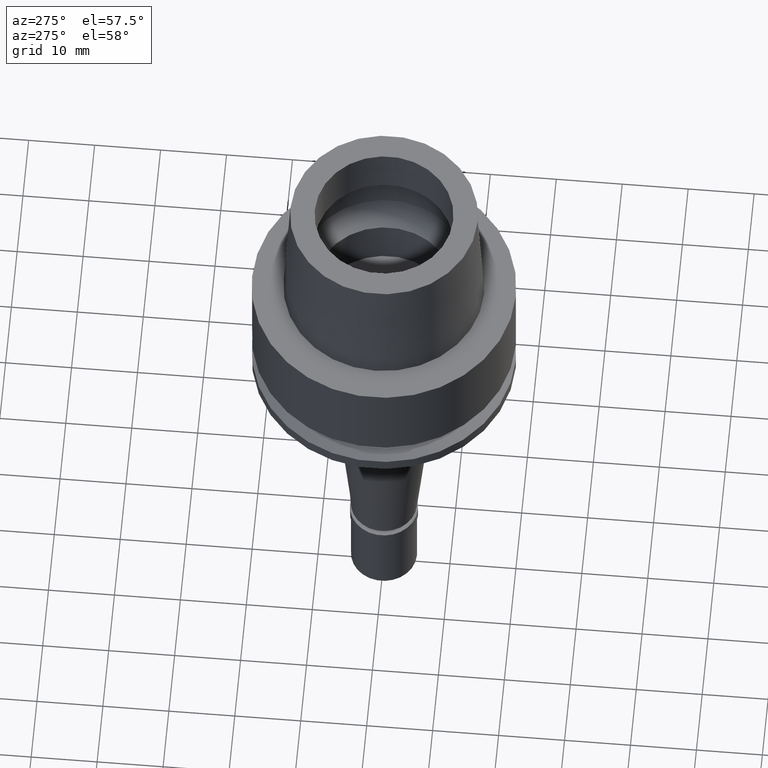
[diagram: clean part render]
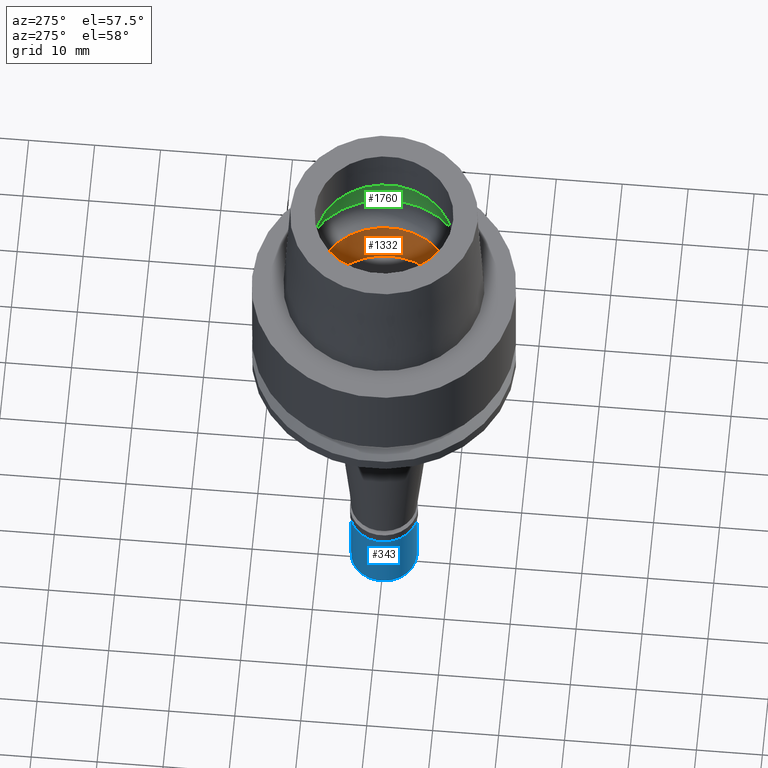
[diagram: same view with three faces highlighted in distinct colors, each labeled with its STEP entity id]
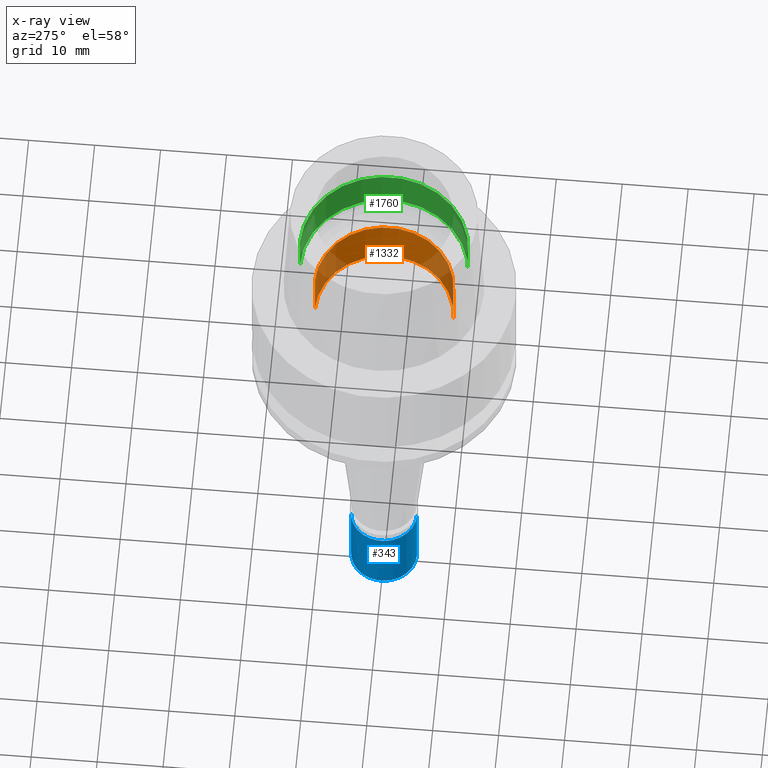
[diagram: x-ray of the same camera — body ghosted, the three highlighted faces saturated]
A machine part, auxiliary view with three faces highlighted in distinct colors.
The next image is the same camera in x-ray (body ghosted, the three faces saturated) — at least one of them is partly hidden behind the body in this view.
Their STEP definitions:

[orange] entity #1332 — the highlighted cylindrical surface (partial cylindrical patch) has radius 10.5 mm, axis along (0, 0, 1).
#28 = VERTEX_POINT ( 'NONE', #1275 ) ;
#70 = CARTESIAN_POINT ( 'NONE',  ( 0.0000000000000000000, 10.50000000000000000, -1.705302565823999875E-13 ) ) ;
#82 = DIRECTION ( 'NONE',  ( 0.0000000000000000000, 0.0000000000000000000, 1.000000000000000000 ) ) ;
#118 = DIRECTION ( 'NONE',  ( 0.0000000000000000000, -1.000000000000000000, 0.0000000000000000000 ) ) ;
#123 = ORIENTED_EDGE ( 'NONE', *, *, #1184, .T. ) ;
#125 = DIRECTION ( 'NONE',  ( 0.0000000000000000000, 0.0000000000000000000, -1.000000000000000000 ) ) ;
#233 = FACE_OUTER_BOUND ( 'NONE', #2328, .T. ) ;
#275 = DIRECTION ( 'NONE',  ( 0.0000000000000000000, 1.000000000000000000, 0.0000000000000000000 ) ) ;
#517 = ORIENTED_EDGE ( 'NONE', *, *, #2458, .T. ) ;
#526 = DIRECTION ( 'NONE',  ( 0.0000000000000000000, 0.0000000000000000000, 1.000000000000000000 ) ) ;
#529 = CIRCLE ( 'NONE', #2177, 10.50000000000000000 ) ;
#542 = CARTESIAN_POINT ( 'NONE',  ( 0.0000000000000000000, -10.50000000000000000, -7.950000000000000178 ) ) ;
#573 = CARTESIAN_POINT ( 'NONE',  ( 0.0000000000000000000, 0.0000000000000000000, -7.950000000000000178 ) ) ;
#794 = AXIS2_PLACEMENT_3D ( 'NONE', #2151, #1990, #118 ) ;
#819 = VERTEX_POINT ( 'NONE', #1790 ) ;
#841 = CIRCLE ( 'NONE', #794, 10.50000000000000000 ) ;
#904 = CARTESIAN_POINT ( 'NONE',  ( 0.0000000000000000000, 0.0000000000000000000, -75.86499999999999488 ) ) ;
#974 = DIRECTION ( 'NONE',  ( 0.0000000000000000000, 1.000000000000000000, 0.0000000000000000000 ) ) ;
#1055 = AXIS2_PLACEMENT_3D ( 'NONE', #904, #1063, #275 ) ;
#1063 = DIRECTION ( 'NONE',  ( 0.0000000000000000000, 0.0000000000000000000, 1.000000000000000000 ) ) ;
#1151 = EDGE_CURVE ( 'NONE', #28, #1697, #2628, .T. ) ;
#1167 = EDGE_CURVE ( 'NONE', #28, #819, #529, .T. ) ;
#1184 = EDGE_CURVE ( 'NONE', #819, #2326, #2613, .T. ) ;
#1275 = CARTESIAN_POINT ( 'NONE',  ( 0.0000000000000000000, 10.50000000000000000, -7.950000000000000178 ) ) ;
#1332 = ADVANCED_FACE ( 'NONE', ( #233 ), #1925, .F. ) ;
#1508 = VECTOR ( 'NONE', #526, 1000.000000000000000 ) ;
#1509 = ORIENTED_EDGE ( 'NONE', *, *, #1167, .T. ) ;
#1621 = ORIENTED_EDGE ( 'NONE', *, *, #1151, .F. ) ;
#1697 = VERTEX_POINT ( 'NONE', #70 ) ;
#1701 = VECTOR ( 'NONE', #82, 1000.000000000000000 ) ;
#1790 = CARTESIAN_POINT ( 'NONE',  ( 0.0000000000000000000, -10.50000000000000000, -7.950000000000000178 ) ) ;
#1925 = CYLINDRICAL_SURFACE ( 'NONE', #1055, 10.50000000000000000 ) ;
#1990 = DIRECTION ( 'NONE',  ( 0.0000000000000000000, 0.0000000000000000000, 1.000000000000000000 ) ) ;
#2047 = CARTESIAN_POINT ( 'NONE',  ( 0.0000000000000000000, -10.50000000000000000, -1.705302565823999875E-13 ) ) ;
#2151 = CARTESIAN_POINT ( 'NONE',  ( 0.0000000000000000000, 0.0000000000000000000, -1.847411112975999717E-13 ) ) ;
#2177 = AXIS2_PLACEMENT_3D ( 'NONE', #573, #125, #974 ) ;
#2326 = VERTEX_POINT ( 'NONE', #2047 ) ;
#2328 = EDGE_LOOP ( 'NONE', ( #1509, #123, #517, #1621 ) ) ;
#2436 = CARTESIAN_POINT ( 'NONE',  ( 0.0000000000000000000, 10.50000000000000000, -7.950000000000000178 ) ) ;
#2458 = EDGE_CURVE ( 'NONE', #2326, #1697, #841, .T. ) ;
#2613 = LINE ( 'NONE', #542, #1701 ) ;
#2628 = LINE ( 'NONE', #2436, #1508 ) ;

[blue] entity #343 — the highlighted cylindrical surface (edge-blend (fillet) strip) has radius 5 mm, axis along (0, 0, 1).
#176 = CARTESIAN_POINT ( 'NONE',  ( 0.0000000000000000000, 0.0000000000000000000, -1.800000000000000044 ) ) ;
#241 = ORIENTED_EDGE ( 'NONE', *, *, #1801, .T. ) ;
#249 = VERTEX_POINT ( 'NONE', #1926 ) ;
#296 = EDGE_LOOP ( 'NONE', ( #241, #2685, #1304, #1122 ) ) ;
#343 = ADVANCED_FACE ( 'NONE', ( #2386 ), #2343, .T. ) ;
#447 = DIRECTION ( 'NONE',  ( 0.0000000000000000000, 0.0000000000000000000, -1.000000000000000000 ) ) ;
#479 = VERTEX_POINT ( 'NONE', #1981 ) ;
#520 = DIRECTION ( 'NONE',  ( 0.0000000000000000000, 0.0000000000000000000, 1.000000000000000000 ) ) ;
#585 = DIRECTION ( 'NONE',  ( 0.0000000000000000000, 0.0000000000000000000, -1.000000000000000000 ) ) ;
#619 = VECTOR ( 'NONE', #447, 1000.000000000000000 ) ;
#729 = EDGE_CURVE ( 'NONE', #2382, #249, #2066, .T. ) ;
#856 = DIRECTION ( 'NONE',  ( 0.0000000000000000000, 0.0000000000000000000, -1.000000000000000000 ) ) ;
#869 = CARTESIAN_POINT ( 'NONE',  ( 0.0000000000000000000, -5.000000000000000000, -1.800000000000000044 ) ) ;
#883 = CARTESIAN_POINT ( 'NONE',  ( 0.0000000000000000000, 5.000000000000000000, -1.800000000000000044 ) ) ;
#896 = DIRECTION ( 'NONE',  ( 0.0000000000000000000, 1.000000000000000000, 0.0000000000000000000 ) ) ;
#905 = DIRECTION ( 'NONE',  ( 0.0000000000000000000, 1.000000000000000000, 0.0000000000000000000 ) ) ;
#1122 = ORIENTED_EDGE ( 'NONE', *, *, #2424, .T. ) ;
#1137 = CIRCLE ( 'NONE', #1195, 5.000000000000000000 ) ;
#1195 = AXIS2_PLACEMENT_3D ( 'NONE', #1309, #2529, #896 ) ;
#1292 = LINE ( 'NONE', #883, #1698 ) ;
#1304 = ORIENTED_EDGE ( 'NONE', *, *, #729, .T. ) ;
#1309 = CARTESIAN_POINT ( 'NONE',  ( 0.0000000000000000000, 0.0000000000000000000, -13.00000000000000000 ) ) ;
#1334 = CARTESIAN_POINT ( 'NONE',  ( 0.0000000000000000000, 0.0000000000000000000, -13.65000000000000036 ) ) ;
#1473 = LINE ( 'NONE', #869, #619 ) ;
#1698 = VECTOR ( 'NONE', #856, 1000.000000000000000 ) ;
#1801 = EDGE_CURVE ( 'NONE', #479, #1900, #1137, .T. ) ;
#1900 = VERTEX_POINT ( 'NONE', #2169 ) ;
#1926 = CARTESIAN_POINT ( 'NONE',  ( 0.0000000000000000000, 5.000000000000000000, -1.800000000000000044 ) ) ;
#1981 = CARTESIAN_POINT ( 'NONE',  ( 0.0000000000000000000, 5.000000000000000000, -13.00000000000000000 ) ) ;
#2066 = CIRCLE ( 'NONE', #2414, 5.000000000000000000 ) ;
#2169 = CARTESIAN_POINT ( 'NONE',  ( 0.0000000000000000000, -5.000000000000000000, -13.00000000000000000 ) ) ;
#2322 = AXIS2_PLACEMENT_3D ( 'NONE', #1334, #520, #905 ) ;
#2343 = CYLINDRICAL_SURFACE ( 'NONE', #2322, 5.000000000000000000 ) ;
#2382 = VERTEX_POINT ( 'NONE', #2694 ) ;
#2386 = FACE_OUTER_BOUND ( 'NONE', #296, .T. ) ;
#2414 = AXIS2_PLACEMENT_3D ( 'NONE', #176, #585, #2656 ) ;
#2424 = EDGE_CURVE ( 'NONE', #249, #479, #1292, .T. ) ;
#2446 = EDGE_CURVE ( 'NONE', #2382, #1900, #1473, .T. ) ;
#2529 = DIRECTION ( 'NONE',  ( 0.0000000000000000000, 0.0000000000000000000, 1.000000000000000000 ) ) ;
#2656 = DIRECTION ( 'NONE',  ( 0.0000000000000000000, -1.000000000000000000, 0.0000000000000000000 ) ) ;
#2685 = ORIENTED_EDGE ( 'NONE', *, *, #2446, .F. ) ;
#2694 = CARTESIAN_POINT ( 'NONE',  ( 0.0000000000000000000, -5.000000000000000000, -1.800000000000000044 ) ) ;

[green] entity #1760 — the highlighted cylindrical surface (partial cylindrical patch) has radius 12.75 mm, axis along (0, 0, 1).
#14 = DIRECTION ( 'NONE',  ( 0.0000000000000000000, 1.000000000000000000, 0.0000000000000000000 ) ) ;
#52 = DIRECTION ( 'NONE',  ( 0.0000000000000000000, 5.489095069965999714E-14, 1.000000000000000000 ) ) ;
#238 = DIRECTION ( 'NONE',  ( 0.0000000000000000000, 0.0000000000000000000, 1.000000000000000000 ) ) ;
#269 = EDGE_CURVE ( 'NONE', #758, #2523, #290, .T. ) ;
#282 = DIRECTION ( 'NONE',  ( 0.0000000000000000000, -1.000000000000000000, 0.0000000000000000000 ) ) ;
#290 = LINE ( 'NONE', #731, #2411 ) ;
#364 = ORIENTED_EDGE ( 'NONE', *, *, #1673, .T. ) ;
#449 = VECTOR ( 'NONE', #1344, 1000.000000000000000 ) ;
#467 = DIRECTION ( 'NONE',  ( 0.0000000000000000000, 1.000000000000000000, 0.0000000000000000000 ) ) ;
#484 = FACE_OUTER_BOUND ( 'NONE', #2415, .T. ) ;
#532 = AXIS2_PLACEMENT_3D ( 'NONE', #1339, #2558, #282 ) ;
#536 = VERTEX_POINT ( 'NONE', #1510 ) ;
#586 = EDGE_CURVE ( 'NONE', #536, #2317, #2360, .T. ) ;
#642 = ORIENTED_EDGE ( 'NONE', *, *, #1781, .T. ) ;
#731 = CARTESIAN_POINT ( 'NONE',  ( 0.0000000000000000000, 12.75000000000000000, 4.225999999999999979 ) ) ;
#754 = CARTESIAN_POINT ( 'NONE',  ( 0.0000000000000000000, 12.75000000000000000, 10.69831216350999981 ) ) ;
#758 = VERTEX_POINT ( 'NONE', #1592 ) ;
#791 = CIRCLE ( 'NONE', #1058, 12.75000000000000000 ) ;
#1058 = AXIS2_PLACEMENT_3D ( 'NONE', #2132, #1682, #467 ) ;
#1080 = CARTESIAN_POINT ( 'NONE',  ( 0.0000000000000000000, 0.0000000000000000000, -75.86499999999999488 ) ) ;
#1339 = CARTESIAN_POINT ( 'NONE',  ( 0.0000000000000000000, 0.0000000000000000000, 10.69831216350999981 ) ) ;
#1344 = DIRECTION ( 'NONE',  ( 0.0000000000000000000, -5.489095069965999714E-14, 1.000000000000000000 ) ) ;
#1510 = CARTESIAN_POINT ( 'NONE',  ( 0.0000000000000000000, -12.75000000000000000, 4.225999999999999979 ) ) ;
#1592 = CARTESIAN_POINT ( 'NONE',  ( 0.0000000000000000000, 12.75000000000000000, 4.225999999999999979 ) ) ;
#1673 = EDGE_CURVE ( 'NONE', #2317, #2523, #2308, .T. ) ;
#1682 = DIRECTION ( 'NONE',  ( 0.0000000000000000000, 0.0000000000000000000, -1.000000000000000000 ) ) ;
#1760 = ADVANCED_FACE ( 'NONE', ( #484 ), #2101, .F. ) ;
#1781 = EDGE_CURVE ( 'NONE', #758, #536, #791, .T. ) ;
#2101 = CYLINDRICAL_SURFACE ( 'NONE', #2298, 12.75000000000000000 ) ;
#2132 = CARTESIAN_POINT ( 'NONE',  ( 0.0000000000000000000, 0.0000000000000000000, 4.225999999999999979 ) ) ;
#2298 = AXIS2_PLACEMENT_3D ( 'NONE', #1080, #238, #14 ) ;
#2308 = CIRCLE ( 'NONE', #532, 12.75000000000000000 ) ;
#2317 = VERTEX_POINT ( 'NONE', #2318 ) ;
#2318 = CARTESIAN_POINT ( 'NONE',  ( 0.0000000000000000000, -12.75000000000000000, 10.69831216350999981 ) ) ;
#2341 = CARTESIAN_POINT ( 'NONE',  ( 0.0000000000000000000, -12.75000000000000000, 4.225999999999999979 ) ) ;
#2359 = ORIENTED_EDGE ( 'NONE', *, *, #586, .T. ) ;
#2360 = LINE ( 'NONE', #2341, #449 ) ;
#2411 = VECTOR ( 'NONE', #52, 1000.000000000000000 ) ;
#2415 = EDGE_LOOP ( 'NONE', ( #642, #2359, #364, #2536 ) ) ;
#2523 = VERTEX_POINT ( 'NONE', #754 ) ;
#2536 = ORIENTED_EDGE ( 'NONE', *, *, #269, .F. ) ;
#2558 = DIRECTION ( 'NONE',  ( 0.0000000000000000000, 0.0000000000000000000, 1.000000000000000000 ) ) ;